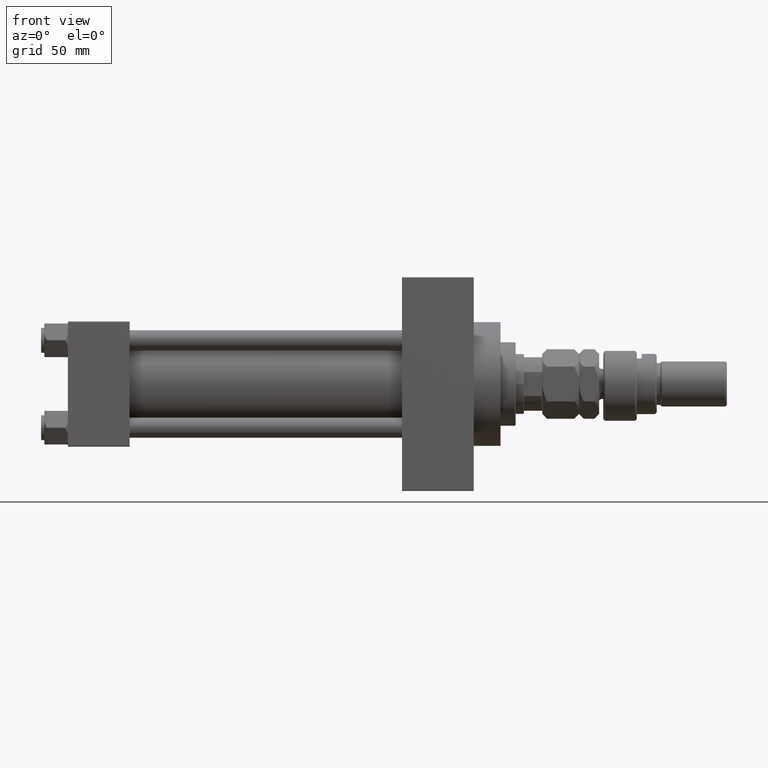
[diagram: clean part render]
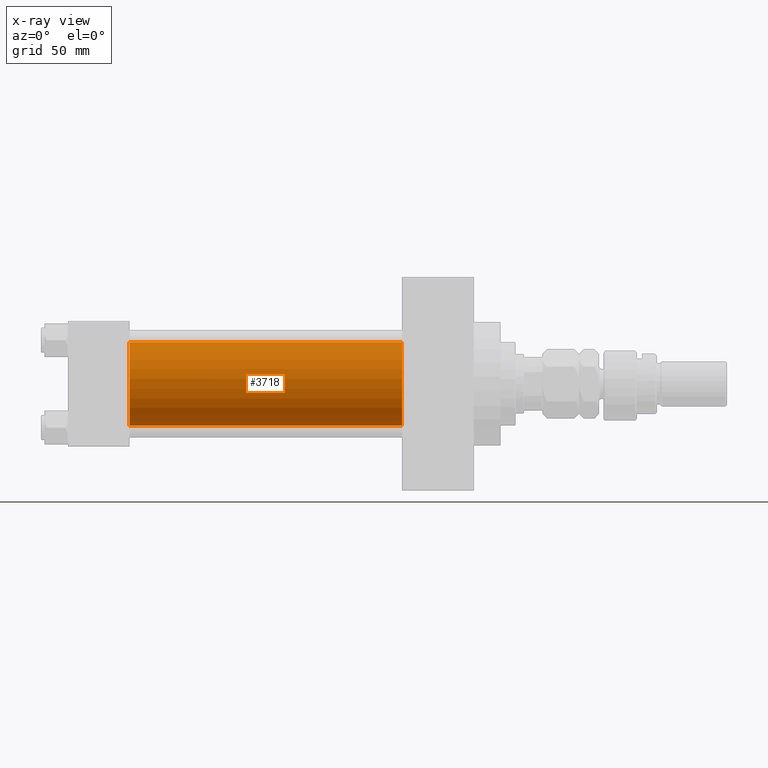
[diagram: x-ray — body ghosted, one internal face saturated and labeled with its STEP entity id]
A machine part, front view, then the same camera in x-ray: the body is ghosted and one INTERNAL B-rep face — a face not visible from any outside direction — is saturated and labeled: STEP entity #3718.
In plain terms, the highlighted cylindrical surface (partial cylindrical patch) has radius 25 mm, axis along (-1, -0, -0).
Its self-contained STEP definition (entity closure, byte-faithful):
#404 = LINE ( 'NONE', #36519, #17704 ) ;
#2077 = CARTESIAN_POINT ( 'NONE',  ( 37.00000000000000000, -2.602085213965210642E-15, 25.00000000000000000 ) ) ;
#2946 = CYLINDRICAL_SURFACE ( 'NONE', #28796, 25.00000000000000000 ) ;
#3718 = ADVANCED_FACE ( 'NONE', ( #46983 ), #2946, .F. ) ;
#6019 = VERTEX_POINT ( 'NONE', #6292 ) ;
#6292 = CARTESIAN_POINT ( 'NONE',  ( 200.0000000000000000, -2.602085213965210642E-15, 25.00000000000000000 ) ) ;
#6913 = VECTOR ( 'NONE', #42294, 1000.000000000000000 ) ;
#6993 = DIRECTION ( 'NONE',  ( 1.000000000000000000, 0.000000000000000000, 0.000000000000000000 ) ) ;
#8154 = EDGE_CURVE ( 'NONE', #6019, #35564, #26099, .T. ) ;
#8209 = EDGE_CURVE ( 'NONE', #35564, #15630, #11157, .T. ) ;
#10700 = ORIENTED_EDGE ( 'NONE', *, *, #49263, .T. ) ;
#11157 = CIRCLE ( 'NONE', #24739, 25.00000000000000000 ) ;
#11178 = ORIENTED_EDGE ( 'NONE', *, *, #8209, .F. ) ;
#12478 = CIRCLE ( 'NONE', #31968, 25.00000000000000000 ) ;
#13647 = ORIENTED_EDGE ( 'NONE', *, *, #45263, .T. ) ;
#15630 = VERTEX_POINT ( 'NONE', #46584 ) ;
#17704 = VECTOR ( 'NONE', #44722, 1000.000000000000000 ) ;
#22085 = ORIENTED_EDGE ( 'NONE', *, *, #8154, .F. ) ;
#24232 = DIRECTION ( 'NONE',  ( 0.000000000000000000, 0.000000000000000000, -1.000000000000000000 ) ) ;
#24739 = AXIS2_PLACEMENT_3D ( 'NONE', #43345, #6993, #24232 ) ;
#26099 = LINE ( 'NONE', #51282, #6913 ) ;
#28796 = AXIS2_PLACEMENT_3D ( 'NONE', #30827, #39055, #43014 ) ;
#29014 = EDGE_LOOP ( 'NONE', ( #13647, #10700, #11178, #22085 ) ) ;
#30827 = CARTESIAN_POINT ( 'NONE',  ( 200.0000000000000000, -2.602085213965210642E-15, 0.000000000000000000 ) ) ;
#31968 = AXIS2_PLACEMENT_3D ( 'NONE', #42894, #51365, #51638 ) ;
#34144 = VERTEX_POINT ( 'NONE', #50735 ) ;
#35564 = VERTEX_POINT ( 'NONE', #2077 ) ;
#36519 = CARTESIAN_POINT ( 'NONE',  ( 200.0000000000000000, 4.595317839031724996E-16, -25.00000000000000000 ) ) ;
#39055 = DIRECTION ( 'NONE',  ( -1.000000000000000000, -0.000000000000000000, -0.000000000000000000 ) ) ;
#42294 = DIRECTION ( 'NONE',  ( -1.000000000000000000, -0.000000000000000000, -0.000000000000000000 ) ) ;
#42894 = CARTESIAN_POINT ( 'NONE',  ( 200.0000000000000000, -2.602085213965210642E-15, 0.000000000000000000 ) ) ;
#43014 = DIRECTION ( 'NONE',  ( 0.000000000000000000, 0.000000000000000000, 1.000000000000000000 ) ) ;
#43345 = CARTESIAN_POINT ( 'NONE',  ( 37.00000000000000000, -2.602085213965210642E-15, 0.000000000000000000 ) ) ;
#44722 = DIRECTION ( 'NONE',  ( -1.000000000000000000, -0.000000000000000000, -0.000000000000000000 ) ) ;
#45263 = EDGE_CURVE ( 'NONE', #6019, #34144, #12478, .T. ) ;
#46584 = CARTESIAN_POINT ( 'NONE',  ( 37.00000000000000000, 4.595317839031724996E-16, -25.00000000000000000 ) ) ;
#46983 = FACE_OUTER_BOUND ( 'NONE', #29014, .T. ) ;
#49263 = EDGE_CURVE ( 'NONE', #34144, #15630, #404, .T. ) ;
#50735 = CARTESIAN_POINT ( 'NONE',  ( 200.0000000000000000, 4.595317839031724996E-16, -25.00000000000000000 ) ) ;
#51282 = CARTESIAN_POINT ( 'NONE',  ( 200.0000000000000000, -2.602085213965210642E-15, 25.00000000000000000 ) ) ;
#51365 = DIRECTION ( 'NONE',  ( 1.000000000000000000, 0.000000000000000000, 0.000000000000000000 ) ) ;
#51638 = DIRECTION ( 'NONE',  ( 0.000000000000000000, 0.000000000000000000, -1.000000000000000000 ) ) ;